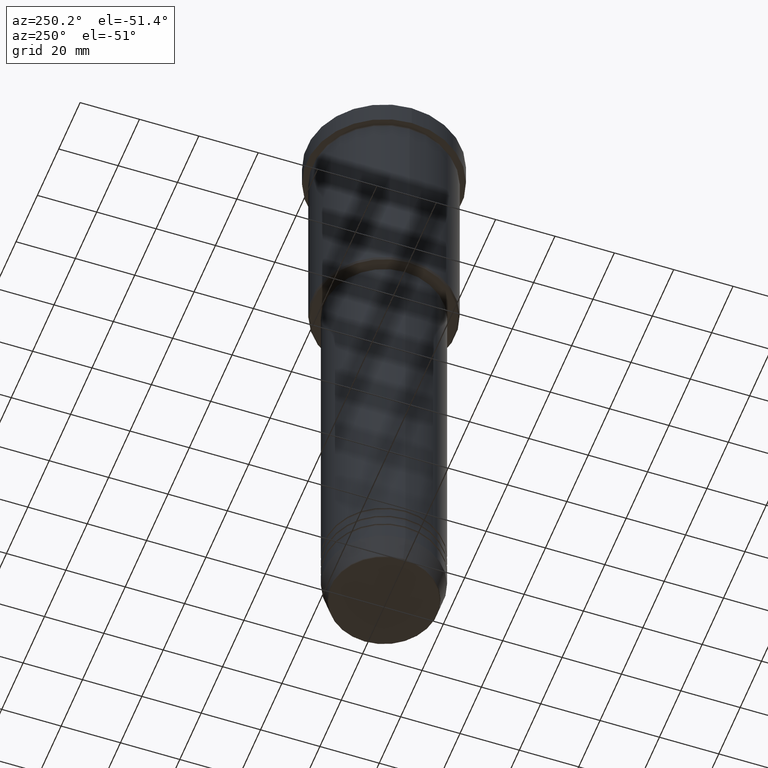
[diagram: clean part render]
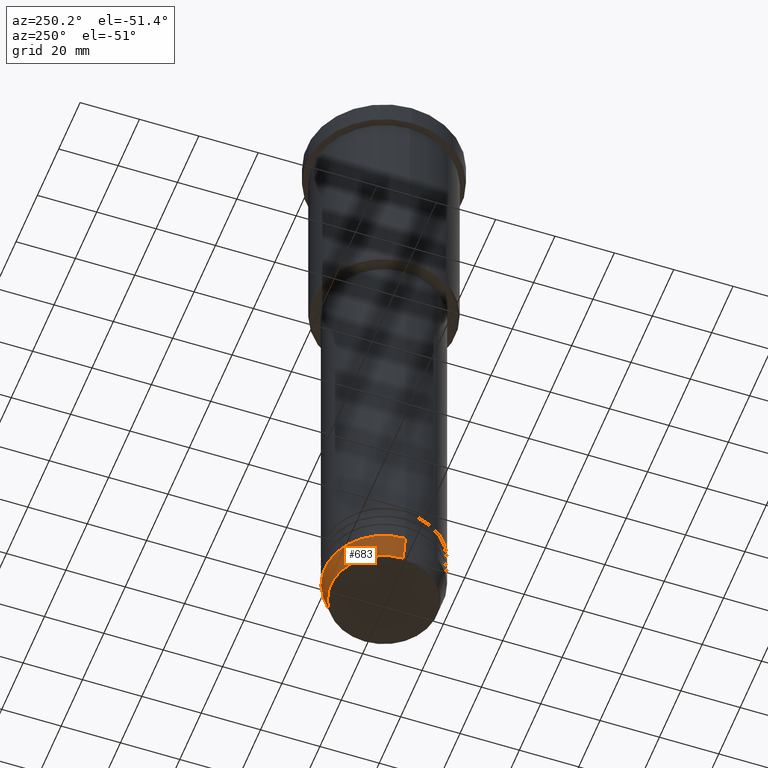
[diagram: same view with one face highlighted and labeled with its STEP entity id]
A machine part, auxiliary view. The second image highlights one B-rep face of the part: STEP entity #683.
In plain terms, the highlighted conical surface has half-angle 15 deg.
Its self-contained STEP definition (entity closure, byte-faithful):
#66 = CONICAL_SURFACE ( 'NONE', #838, 20.00000000000000355, 0.2617993877991500740 ) ;
#111 = ORIENTED_EDGE ( 'NONE', *, *, #1054, .T. ) ;
#123 = EDGE_CURVE ( 'NONE', #783, #1155, #845, .T. ) ;
#129 = DIRECTION ( 'NONE',  ( -0.000000000000000000, -0.000000000000000000, 1.000000000000000000 ) ) ;
#181 = DIRECTION ( 'NONE',  ( -0.000000000000000000, -0.000000000000000000, 1.000000000000000000 ) ) ;
#255 = DIRECTION ( 'NONE',  ( -0.000000000000000000, -0.000000000000000000, 1.000000000000000000 ) ) ;
#267 = CIRCLE ( 'NONE', #529, 17.95570587970607690 ) ;
#296 = CIRCLE ( 'NONE', #417, 20.00000000000000355 ) ;
#306 = VERTEX_POINT ( 'NONE', #1068 ) ;
#372 = DIRECTION ( 'NONE',  ( 1.000000000000000000, 0.000000000000000000, 0.000000000000000000 ) ) ;
#388 = EDGE_CURVE ( 'NONE', #1082, #306, #580, .T. ) ;
#417 = AXIS2_PLACEMENT_3D ( 'NONE', #712, #181, #372 ) ;
#481 = FACE_OUTER_BOUND ( 'NONE', #920, .T. ) ;
#485 = ORIENTED_EDGE ( 'NONE', *, *, #489, .F. ) ;
#489 = EDGE_CURVE ( 'NONE', #1155, #306, #296, .T. ) ;
#500 = DIRECTION ( 'NONE',  ( -0.2588190451025213501, 3.169619151431772337E-17, 0.9659258262890680902 ) ) ;
#529 = AXIS2_PLACEMENT_3D ( 'NONE', #802, #255, #995 ) ;
#538 = VECTOR ( 'NONE', #1123, 1000.000000000000000 ) ;
#540 = CARTESIAN_POINT ( 'NONE',  ( 20.00000000000000355, 0.000000000000000000, -212.0000000000000000 ) ) ;
#580 = LINE ( 'NONE', #855, #949 ) ;
#583 = CARTESIAN_POINT ( 'NONE',  ( 17.95570587970607690, 0.000000000000000000, -219.6294095225512422 ) ) ;
#640 = CARTESIAN_POINT ( 'NONE',  ( 0.000000000000000000, 0.000000000000000000, -212.0000000000000000 ) ) ;
#676 = DIRECTION ( 'NONE',  ( 1.000000000000000000, 0.000000000000000000, 0.000000000000000000 ) ) ;
#683 = ADVANCED_FACE ( 'NONE', ( #481 ), #66, .T. ) ;
#689 = ORIENTED_EDGE ( 'NONE', *, *, #123, .F. ) ;
#712 = CARTESIAN_POINT ( 'NONE',  ( 0.000000000000000000, 0.000000000000000000, -212.0000000000000000 ) ) ;
#767 = CARTESIAN_POINT ( 'NONE',  ( 20.00000000000000355, 0.000000000000000000, -212.0000000000000000 ) ) ;
#783 = VERTEX_POINT ( 'NONE', #583 ) ;
#802 = CARTESIAN_POINT ( 'NONE',  ( 0.000000000000000000, 0.000000000000000000, -219.6294095225512422 ) ) ;
#838 = AXIS2_PLACEMENT_3D ( 'NONE', #640, #129, #676 ) ;
#845 = LINE ( 'NONE', #767, #538 ) ;
#855 = CARTESIAN_POINT ( 'NONE',  ( -20.00000000000000355, 2.449293598294706907E-15, -212.0000000000000000 ) ) ;
#878 = CARTESIAN_POINT ( 'NONE',  ( -17.95570587970607690, 2.324116685748021371E-15, -219.6294095225512422 ) ) ;
#920 = EDGE_LOOP ( 'NONE', ( #111, #971, #485, #689 ) ) ;
#949 = VECTOR ( 'NONE', #500, 1000.000000000000000 ) ;
#971 = ORIENTED_EDGE ( 'NONE', *, *, #388, .T. ) ;
#995 = DIRECTION ( 'NONE',  ( 1.000000000000000000, 0.000000000000000000, 0.000000000000000000 ) ) ;
#1054 = EDGE_CURVE ( 'NONE', #783, #1082, #267, .T. ) ;
#1068 = CARTESIAN_POINT ( 'NONE',  ( -20.00000000000000355, 2.449293598294706907E-15, -212.0000000000000000 ) ) ;
#1082 = VERTEX_POINT ( 'NONE', #878 ) ;
#1123 = DIRECTION ( 'NONE',  ( 0.2588190451025213501, 0.000000000000000000, 0.9659258262890680902 ) ) ;
#1155 = VERTEX_POINT ( 'NONE', #540 ) ;